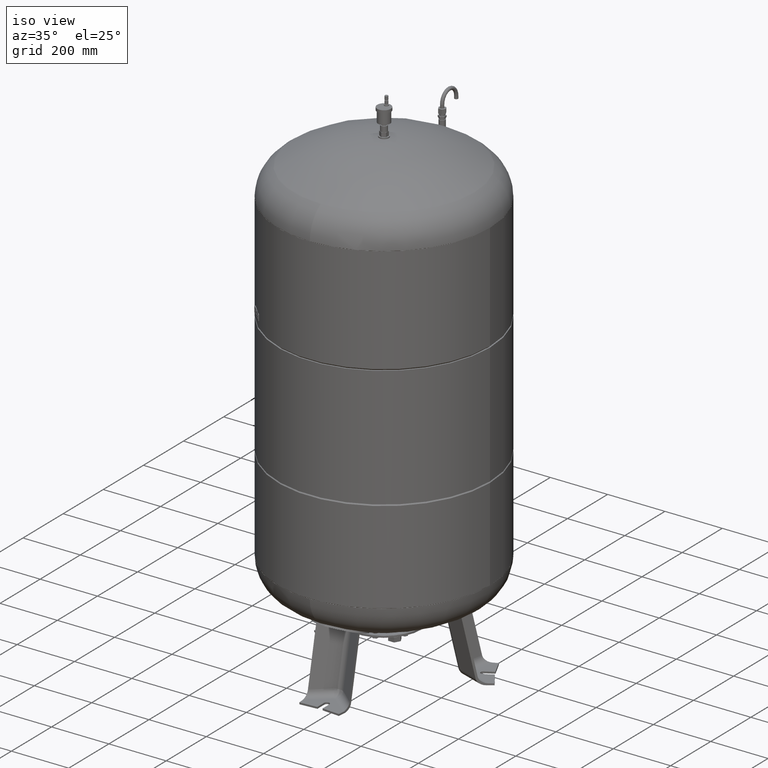
[diagram: clean part render]
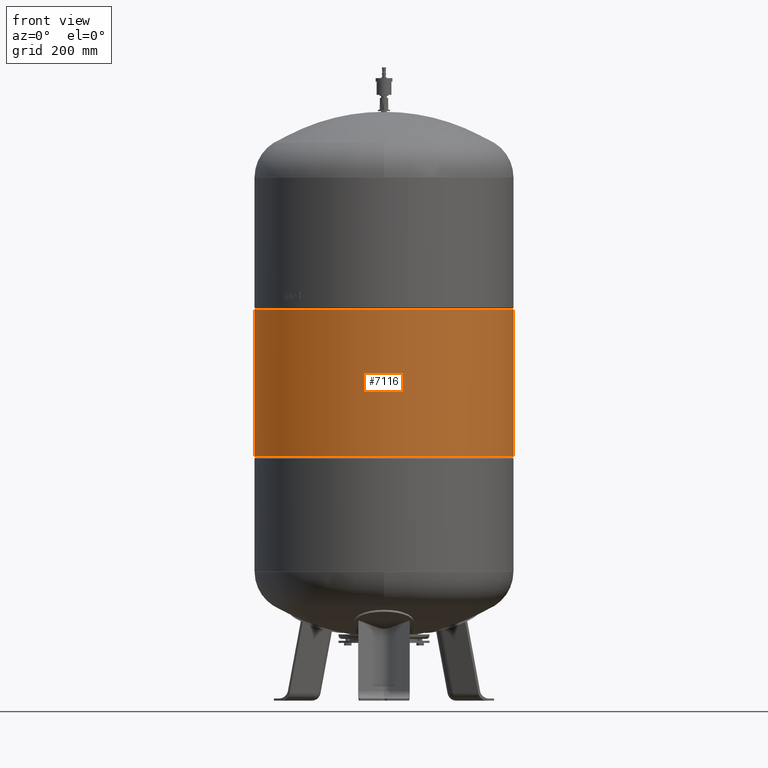
[diagram: tour spotlight — one face highlighted and labeled with its STEP entity id]
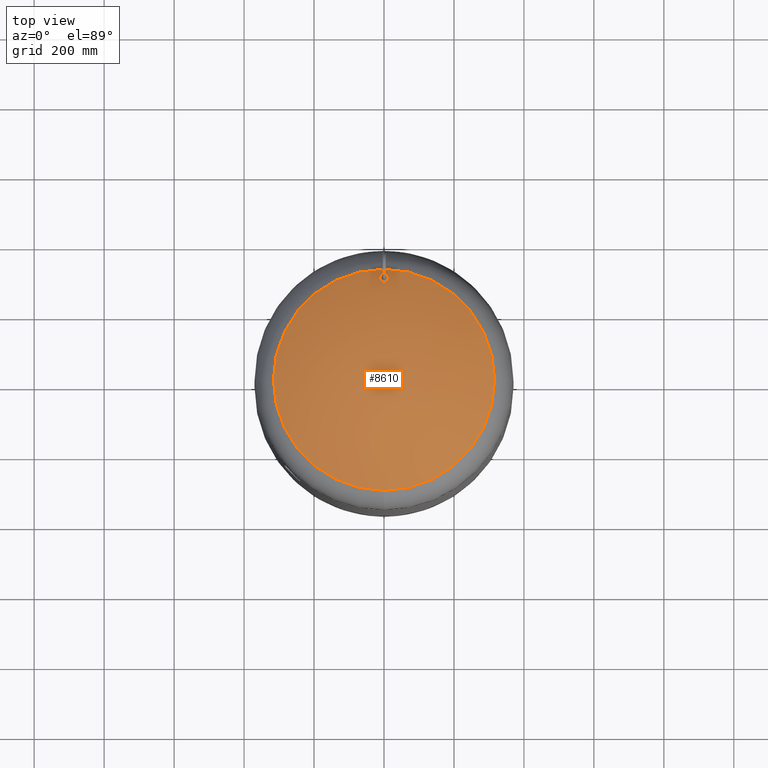
[diagram: tour spotlight — one face highlighted and labeled with its STEP entity id]
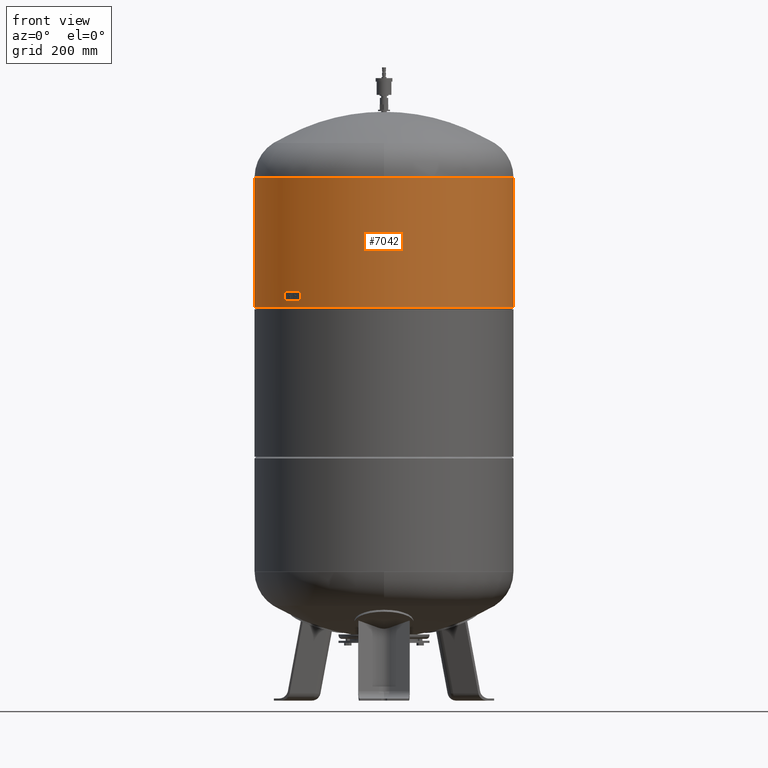
[diagram: tour spotlight — one face highlighted and labeled with its STEP entity id]
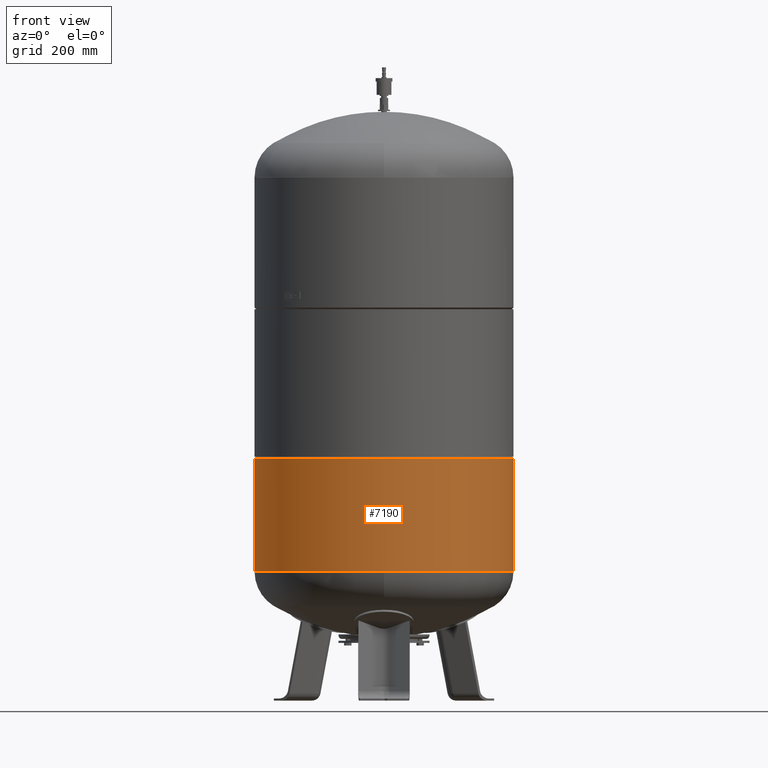
[diagram: tour spotlight — one face highlighted and labeled with its STEP entity id]
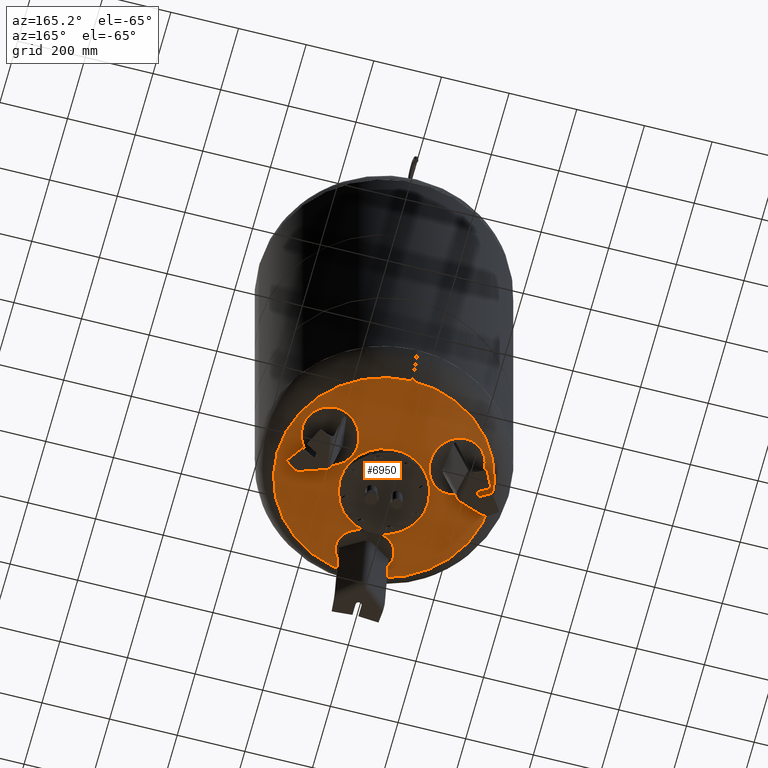
[diagram: tour spotlight — one face highlighted and labeled with its STEP entity id]
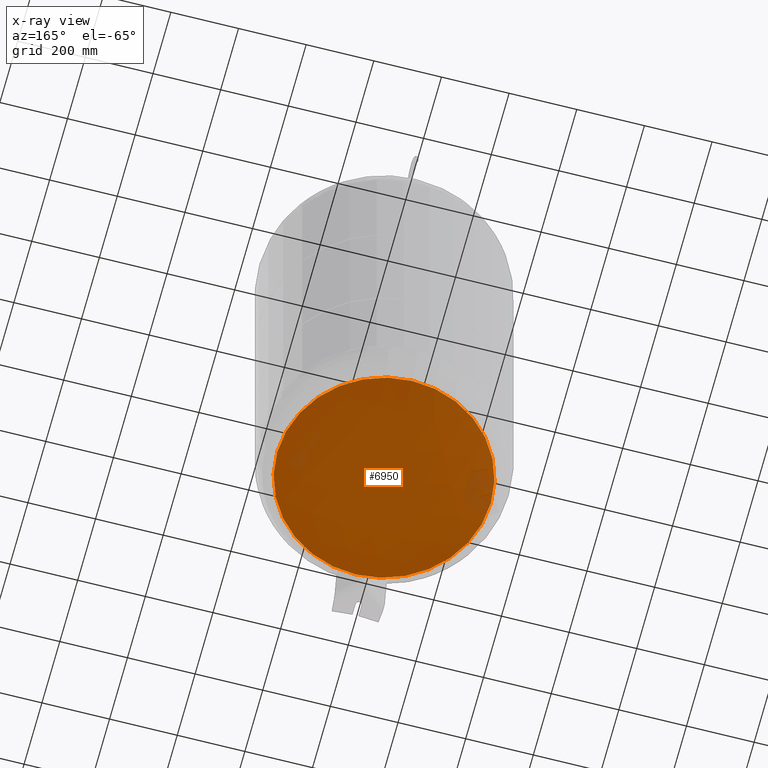
[diagram: x-ray of the same camera — body ghosted, this tour face saturated]
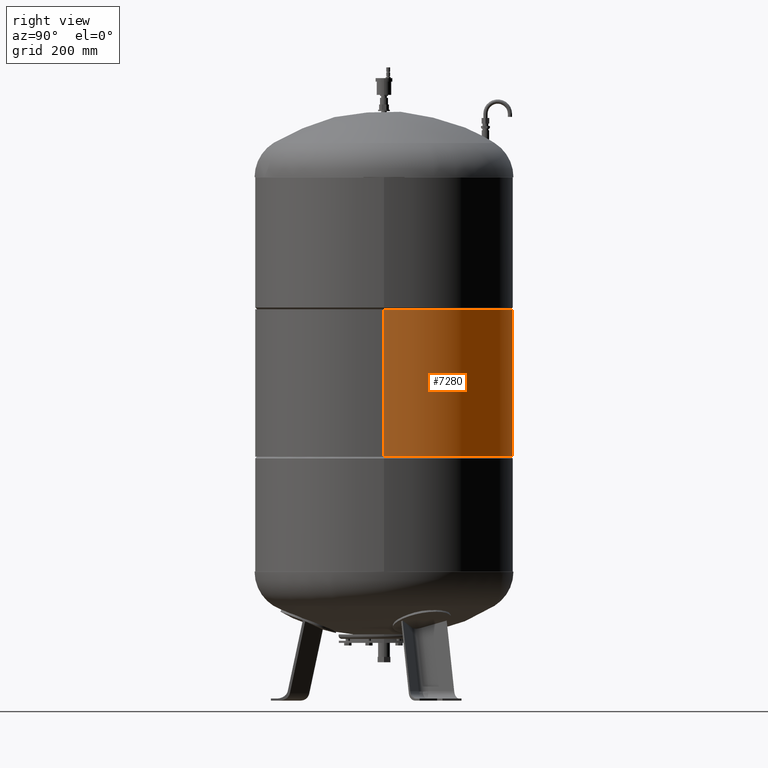
[diagram: tour spotlight — one face highlighted and labeled with its STEP entity id]
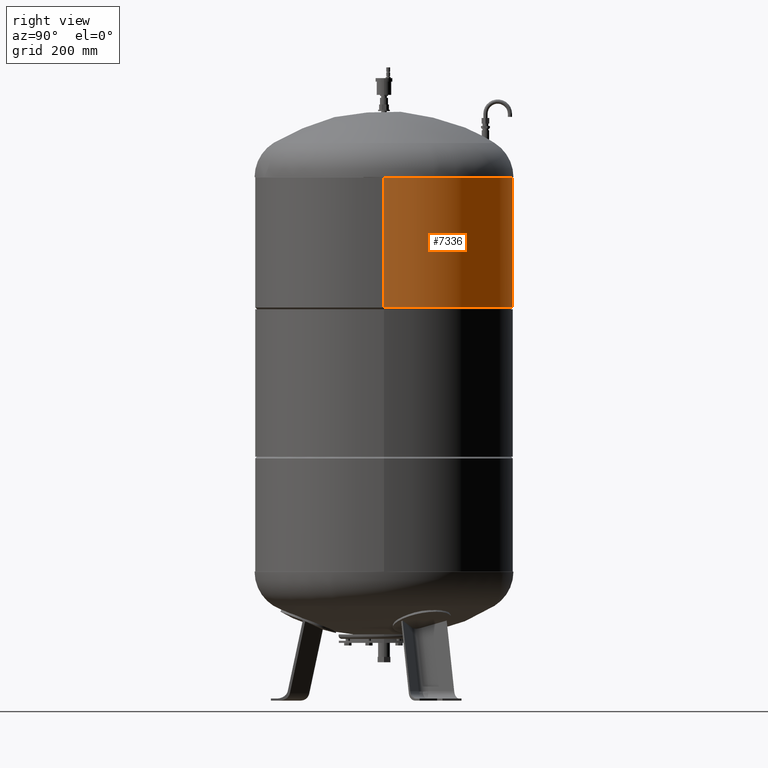
[diagram: tour spotlight — one face highlighted and labeled with its STEP entity id]
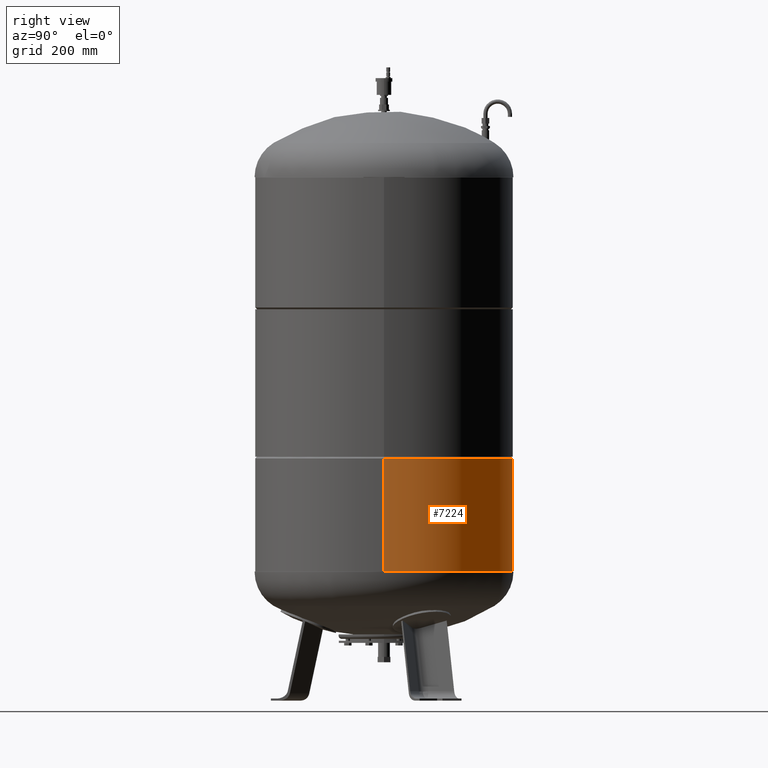
[diagram: tour spotlight — one face highlighted and labeled with its STEP entity id]
A machine part: a face-by-face anatomy tour. The part has 455 B-rep faces; the first image is the clean iso view, then the 8 largest visible faces are spotlighted one at a time (largest first), each with its STEP entity span.

Face 1 — front view, entity #7116. In plain terms, the highlighted cylindrical surface (partial cylindrical patch) has radius 370 mm, axis along (0, 0, 1).
Definition (entity closure, byte-faithful):
#7075=CARTESIAN_POINT('',(-7.289513E-016,0.0,907.885609846773600));
#7076=DIRECTION('',(2.961484E-017,0.0,1.0));
#7077=DIRECTION('',(1.0,0.0,0.0));
#7078=AXIS2_PLACEMENT_3D('',#7075,#7076,#7077);
#7079=CYLINDRICAL_SURFACE('',#7078,370.000000000001140);
#7080=CARTESIAN_POINT('',(369.999999999999720,0.0,1118.666666666666500));
#7081=VERTEX_POINT('',#7080);
#7082=CARTESIAN_POINT('',(370.000000000002610,0.0,697.104553026880580));
#7083=VERTEX_POINT('',#7082);
#7084=CARTESIAN_POINT('',(369.999999999999720,0.0,1118.666666666666500));
#7085=DIRECTION('',(0.0,0.0,-1.0));
#7086=VECTOR('',#7085,421.562113639785930);
#7087=LINE('',#7084,#7086);
#7088=EDGE_CURVE('',#7081,#7083,#7087,.T.);
#7089=ORIENTED_EDGE('',*,*,#7088,.F.);
#7090=CARTESIAN_POINT('',(-370.000000000001140,-4.531044E-014,1118.666666666666500));
#7091=VERTEX_POINT('',#7090);
#7092=CARTESIAN_POINT('',(5.513297E-015,0.0,1118.666666666666500));
#7093=DIRECTION('',(0.0,0.0,1.0));
#7094=DIRECTION('',(1.0,0.0,0.0));
#7095=AXIS2_PLACEMENT_3D('',#7092,#7093,#7094);
#7096=CIRCLE('',#7095,369.999999999999720);
#7097=EDGE_CURVE('',#7091,#7081,#7096,.T.);
#7098=ORIENTED_EDGE('',*,*,#7097,.F.);
#7099=CARTESIAN_POINT('',(-370.000000000001140,-4.531044E-014,697.104553026880470));
#7100=VERTEX_POINT('',#7099);
#7101=CARTESIAN_POINT('',(-370.000000000001140,-4.531044E-014,1118.666666666666500));
#7102=DIRECTION('',(0.0,0.0,-1.0));
#7103=VECTOR('',#7102,421.562113639786050);
#7104=LINE('',#7101,#7103);
#7105=EDGE_CURVE('',#7091,#7100,#7104,.T.);
#7106=ORIENTED_EDGE('',*,*,#7105,.T.);
#7107=CARTESIAN_POINT('',(-6.971199E-015,0.0,697.104553026880470));
#7108=DIRECTION('',(0.0,0.0,1.0));
#7109=DIRECTION('',(1.0,0.0,0.0));
#7110=AXIS2_PLACEMENT_3D('',#7107,#7108,#7109);
#7111=CIRCLE('',#7110,370.000000000002610);
#7112=EDGE_CURVE('',#7100,#7083,#7111,.T.);
#7113=ORIENTED_EDGE('',*,*,#7112,.T.);
#7114=EDGE_LOOP('',(#7089,#7098,#7106,#7113));
#7115=FACE_OUTER_BOUND('',#7114,.T.);
#7116=ADVANCED_FACE('',(#7115),#7079,.T.);

Face 2 — top view, entity #8610. In plain terms, the highlighted spherical surface has radius 594 mm.
Definition (entity closure, byte-faithful):
#8409=CARTESIAN_POINT('',(-1.114251E-014,-315.931034482758610,1594.014494274920500));
#8410=VERTEX_POINT('',#8409);
#8426=CARTESIAN_POINT('',(2.754660E-014,315.931034482758610,1594.014494274920300));
#8427=VERTEX_POINT('',#8426);
#8435=CARTESIAN_POINT('',(315.931034482758610,-1.671377E-014,1594.014494274920500));
#8436=VERTEX_POINT('',#8435);
#8437=CARTESIAN_POINT('',(-1.114251E-014,-1.671377E-014,1594.014494274920500));
#8438=DIRECTION('',(0.0,0.0,-1.0));
#8439=DIRECTION('',(1.0,0.0,0.0));
#8440=AXIS2_PLACEMENT_3D('',#8437,#8438,#8439);
#8441=CIRCLE('',#8440,315.931034482758610);
#8442=EDGE_CURVE('',#8427,#8436,#8441,.T.);
#8444=CARTESIAN_POINT('',(-1.114251E-014,-1.671377E-014,1594.014494274920500));
#8445=DIRECTION('',(0.0,0.0,-1.0));
#8446=DIRECTION('',(1.0,0.0,0.0));
#8447=AXIS2_PLACEMENT_3D('',#8444,#8445,#8446);
#8448=CIRCLE('',#8447,315.931034482758610);
#8449=EDGE_CURVE('',#8436,#8410,#8448,.T.);
#8461=CARTESIAN_POINT('',(-1.426741E-015,300.649999999999980,1603.294424623184800));
#8462=VERTEX_POINT('',#8461);
#8478=CARTESIAN_POINT('',(-1.738477E-015,279.350000000000020,1615.213293898581000));
#8479=VERTEX_POINT('',#8478);
#8486=CARTESIAN_POINT('',(-1.426741E-015,300.649999999999980,1603.294424623184800));
#8487=CARTESIAN_POINT('',(0.664517088266966,300.649999999999980,1603.294424623184800));
#8488=CARTESIAN_POINT('',(1.348109253964791,300.586742816807940,1603.330237396211300));
#8489=CARTESIAN_POINT('',(2.699997526115716,300.325044086684220,1603.478348239149500));
#8490=CARTESIAN_POINT('',(3.368311995923750,300.126673865972800,1603.590604711757800));
#8491=CARTESIAN_POINT('',(4.642225047619459,299.609620017986860,1603.883046385434900));
#8492=CARTESIAN_POINT('',(5.249078569755759,299.290487690306630,1604.063482169014600));
#8493=CARTESIAN_POINT('',(6.365540166833180,298.564221257298130,1604.473827245883500));
#8494=CARTESIAN_POINT('',(6.875165778754454,298.157105848957940,1604.703721915900100));
#8495=CARTESIAN_POINT('',(7.847982860928026,297.235396201609030,1605.223809168565800));
#8496=CARTESIAN_POINT('',(8.329195202777362,296.677378821544890,1605.538447018439900));
#8497=CARTESIAN_POINT('',(9.167633919748026,295.469677227438580,1606.218672395249100));
#8498=CARTESIAN_POINT('',(9.524959682086166,294.820043720028930,1606.584227440323500));
#8499=CARTESIAN_POINT('',(10.094573362227591,293.472357809267690,1607.341702181573100));
#8500=CARTESIAN_POINT('',(10.307217396789019,292.773495712663700,1607.734074588636800));
#8501=CARTESIAN_POINT('',(10.584964209315700,291.374605990228820,1608.518559937688700));
#8502=CARTESIAN_POINT('',(10.650000000000000,290.674568008310080,1608.910678128115700));
#8503=CARTESIAN_POINT('',(10.650000000000000,289.326890933060330,1609.664749724906600));
#8504=CARTESIAN_POINT('',(10.585242166991089,288.627963842796310,1610.055402266440100));
#8505=CARTESIAN_POINT('',(10.308262040270693,287.230601388777020,1610.835532495903000));
#8506=CARTESIAN_POINT('',(10.096100866333323,286.532157118036820,1611.225015928660900));
#8507=CARTESIAN_POINT('',(9.527392653826960,285.184817947542680,1611.975550208299900));
#8508=CARTESIAN_POINT('',(9.170481345050588,284.535105591821660,1612.337058921764500));
#8509=CARTESIAN_POINT('',(8.332742027804864,283.327053926448230,1613.008619632953900));
#8510=CARTESIAN_POINT('',(7.851815066558222,282.768768683924800,1613.318645446750900));
#8511=CARTESIAN_POINT('',(6.878746613494370,281.845830867641440,1613.830806056575300));
#8512=CARTESIAN_POINT('',(6.368501973952601,281.437916940925050,1614.057001015449900));
#8513=CARTESIAN_POINT('',(5.250854218026277,280.710456755459800,1614.460173479165400));
#8514=CARTESIAN_POINT('',(4.643436250791682,280.390929593923540,1614.637144272945100));
#8515=CARTESIAN_POINT('',(3.368640291526728,279.873401441482540,1614.923682600095600));
#8516=CARTESIAN_POINT('',(2.700014877431559,279.674951273003500,1615.033501796580800));
#8517=CARTESIAN_POINT('',(1.347853391049690,279.413215653805140,1615.178326206185800));
#8518=CARTESIAN_POINT('',(0.664299790820504,279.350000000000020,1615.213293898581000));
#8519=CARTESIAN_POINT('',(-1.738477E-015,279.350000000000020,1615.213293898581000));
#8520=B_SPLINE_CURVE_WITH_KNOTS('',3,(#8486,#8487,#8488,#8489,#8490,#8491,#8492,#8493,#8494,#8495,#8496,#8497,#8498,#8499,#8500,#8501,#8502,#8503,#8504,#8505,#8506,#8507,#8508,#8509,#8510,#8511,#8512,#8513,#8514,#8515,#8516,#8517,#8518,#8519),.UNSPECIFIED.,.F.,.U.,(4,2,2,2,2,2,2,2,2,2,2,2,2,2,2,2,4),(0.0,1.993551264800902,3.987102529601803,5.980653794402706,7.974205059203607,10.293160315896881,12.612115572590152,14.931070829283426,17.250026085976700,19.563965955461391,21.877905824946087,24.191845694430782,26.505785563915474,28.498684936376989,30.491584308838508,32.484483681300027,34.477383053761542),.UNSPECIFIED.);
#8521=EDGE_CURVE('',#8462,#8479,#8520,.T.);
#8532=CARTESIAN_POINT('',(-1.738477E-015,279.350000000000020,1615.213293898581000));
#8533=CARTESIAN_POINT('',(-0.664299790820507,279.350000000000020,1615.213293898581000));
#8534=CARTESIAN_POINT('',(-1.347853391049694,279.413215653805140,1615.178326206185800));
#8535=CARTESIAN_POINT('',(-2.700014877431564,279.674951273003500,1615.033501796580800));
#8536=CARTESIAN_POINT('',(-3.368640291526734,279.873401441482540,1614.923682600095600));
#8537=CARTESIAN_POINT('',(-4.643436250791682,280.390929593923540,1614.637144272945100));
#8538=CARTESIAN_POINT('',(-5.250854218026280,280.710456755459800,1614.460173479165400));
#8539=CARTESIAN_POINT('',(-6.368501973952598,281.437916940925050,1614.057001015449900));
#8540=CARTESIAN_POINT('',(-6.878746613494377,281.845830867641440,1613.830806056575300));
#8541=CARTESIAN_POINT('',(-7.851815066558236,282.768768683924800,1613.318645446750900));
#8542=CARTESIAN_POINT('',(-8.332742027804892,283.327053926448290,1613.008619632954200));
#8543=CARTESIAN_POINT('',(-9.170481345050627,284.535105591821720,1612.337058921764800));
#8544=CARTESIAN_POINT('',(-9.527392653826961,285.184817947542680,1611.975550208299900));
#8545=CARTESIAN_POINT('',(-10.096100866333327,286.532157118036820,1611.225015928660900));
#8546=CARTESIAN_POINT('',(-10.308262040270678,287.230601388776850,1610.835532495903000));
#8547=CARTESIAN_POINT('',(-10.585242166991081,288.627963842796130,1610.055402266440100));
#8548=CARTESIAN_POINT('',(-10.650000000000004,289.326890933060330,1609.664749724906600));
#8549=CARTESIAN_POINT('',(-10.650000000000004,290.674568008310080,1608.910678128115700));
#8550=CARTESIAN_POINT('',(-10.584964209315713,291.374605990228760,1608.518559937688700));
#8551=CARTESIAN_POINT('',(-10.307217396789024,292.773495712663700,1607.734074588636800));
#8552=CARTESIAN_POINT('',(-10.094573362227585,293.472357809267750,1607.341702181573100));
#8553=CARTESIAN_POINT('',(-9.524959682086173,294.820043720028880,1606.584227440323700));
#8554=CARTESIAN_POINT('',(-9.167633919748015,295.469677227438640,1606.218672395249300));
#8555=CARTESIAN_POINT('',(-8.329195202777386,296.677378821544830,1605.538447018439900));
#8556=CARTESIAN_POINT('',(-7.847982860928025,297.235396201608980,1605.223809168565800));
#8557=CARTESIAN_POINT('',(-6.875165778754459,298.157105848957830,1604.703721915900100));
#8558=CARTESIAN_POINT('',(-6.365540166833259,298.564221257298070,1604.473827245883500));
#8559=CARTESIAN_POINT('',(-5.249078569755819,299.290487690306580,1604.063482169014600));
#8560=CARTESIAN_POINT('',(-4.642225047619510,299.609620017986860,1603.883046385434900));
#8561=CARTESIAN_POINT('',(-3.368311995923790,300.126673865972860,1603.590604711757600));
#8562=CARTESIAN_POINT('',(-2.699997526115732,300.325044086684220,1603.478348239149500));
#8563=CARTESIAN_POINT('',(-1.348109253964804,300.586742816807940,1603.330237396211300));
#8564=CARTESIAN_POINT('',(-0.664517088266972,300.649999999999980,1603.294424623184800));
#8565=CARTESIAN_POINT('',(-1.426741E-015,300.649999999999980,1603.294424623184800));
#8566=B_SPLINE_CURVE_WITH_KNOTS('',3,(#8532,#8533,#8534,#8535,#8536,#8537,#8538,#8539,#8540,#8541,#8542,#8543,#8544,#8545,#8546,#8547,#8548,#8549,#8550,#8551,#8552,#8553,#8554,#8555,#8556,#8557,#8558,#8559,#8560,#8561,#8562,#8563,#8564,#8565),.UNSPECIFIED.,.F.,.U.,(4,2,2,2,2,2,2,2,2,2,2,2,2,2,2,2,4),(34.477383053761542,36.470282426223058,38.463181798684573,40.456081171146081,42.448980543607597,44.762920413092303,47.076860282577016,49.390800152061722,51.704740021546428,54.023695278239678,56.342650534932929,58.661605791626172,60.980561048319423,62.974112313120344,64.967663577921257,66.961214842722171,68.954766107523085),.UNSPECIFIED.);
#8567=EDGE_CURVE('',#8479,#8462,#8566,.T.);
#8590=CARTESIAN_POINT('',(-7.274402E-014,-1.091160E-013,1091.0));
#8591=DIRECTION('',(0.0,-1.0,0.0));
#8592=DIRECTION('',(-1.0,0.0,0.0));
#8593=AXIS2_PLACEMENT_3D('',#8590,#8591,#8592);
#8594=SPHERICAL_SURFACE('',#8593,594.0);
#8595=ORIENTED_EDGE('',*,*,#8521,.T.);
#8596=ORIENTED_EDGE('',*,*,#8567,.T.);
#8597=EDGE_LOOP('',(#8595,#8596));
#8598=FACE_OUTER_BOUND('',#8597,.T.);
#8599=ORIENTED_EDGE('',*,*,#8449,.F.);
#8600=ORIENTED_EDGE('',*,*,#8442,.F.);
#8601=CARTESIAN_POINT('',(-1.114251E-014,-1.671377E-014,1594.014494274920500));
#8602=DIRECTION('',(0.0,0.0,-1.0));
#8603=DIRECTION('',(1.0,0.0,0.0));
#8604=AXIS2_PLACEMENT_3D('',#8601,#8602,#8603);
#8605=CIRCLE('',#8604,315.931034482758610);
#8606=EDGE_CURVE('',#8410,#8427,#8605,.T.);
#8607=ORIENTED_EDGE('',*,*,#8606,.F.);
#8608=EDGE_LOOP('',(#8599,#8600,#8607));
#8609=FACE_BOUND('',#8608,.T.);
#8610=ADVANCED_FACE('',(#8598,#8609),#8594,.T.);

Face 3 — front view, entity #7042. In plain terms, the highlighted cylindrical surface (partial cylindrical patch) has radius 370 mm, axis along (0, 0, 1).
Definition (entity closure, byte-faithful):
#7001=CARTESIAN_POINT('',(1.117467E-014,0.0,1309.833333333333500));
#7002=DIRECTION('',(2.961484E-017,0.0,1.0));
#7003=DIRECTION('',(1.0,0.0,0.0));
#7004=AXIS2_PLACEMENT_3D('',#7001,#7002,#7003);
#7005=CYLINDRICAL_SURFACE('',#7004,369.999999999999890);
#7006=CARTESIAN_POINT('',(370.0,0.0,1496.0));
#7007=VERTEX_POINT('',#7006);
#7008=CARTESIAN_POINT('',(369.999999999999720,0.0,1123.666666666666500));
#7009=VERTEX_POINT('',#7008);
#7010=CARTESIAN_POINT('',(370.0,0.0,1496.0));
#7011=DIRECTION('',(0.0,0.0,-1.0));
#7012=VECTOR('',#7011,372.333333333333480);
#7013=LINE('',#7010,#7012);
#7014=EDGE_CURVE('',#7007,#7009,#7013,.T.);
#7015=ORIENTED_EDGE('',*,*,#7014,.F.);
#7016=CARTESIAN_POINT('',(-369.999999999999890,-4.531044E-014,1496.0));
#7017=VERTEX_POINT('',#7016);
#7018=CARTESIAN_POINT('',(1.668796E-014,0.0,1496.0));
#7019=DIRECTION('',(0.0,0.0,1.0));
#7020=DIRECTION('',(1.0,0.0,0.0));
#7021=AXIS2_PLACEMENT_3D('',#7018,#7019,#7020);
#7022=CIRCLE('',#7021,370.0);
#7023=EDGE_CURVE('',#7017,#7007,#7022,.T.);
#7024=ORIENTED_EDGE('',*,*,#7023,.F.);
#7025=CARTESIAN_POINT('',(-369.999999999999720,-4.531044E-014,1123.666666666666500));
#7026=VERTEX_POINT('',#7025);
#7027=CARTESIAN_POINT('',(-369.999999999999890,-4.531044E-014,1496.0));
#7028=DIRECTION('',(0.0,0.0,-1.0));
#7029=VECTOR('',#7028,372.333333333333480);
#7030=LINE('',#7027,#7029);
#7031=EDGE_CURVE('',#7017,#7026,#7030,.T.);
#7032=ORIENTED_EDGE('',*,*,#7031,.T.);
#7033=CARTESIAN_POINT('',(5.661371E-015,0.0,1123.666666666666500));
#7034=DIRECTION('',(0.0,0.0,1.0));
#7035=DIRECTION('',(1.0,0.0,0.0));
#7036=AXIS2_PLACEMENT_3D('',#7033,#7034,#7035);
#7037=CIRCLE('',#7036,369.999999999999720);
#7038=EDGE_CURVE('',#7026,#7009,#7037,.T.);
#7039=ORIENTED_EDGE('',*,*,#7038,.T.);
#7040=EDGE_LOOP('',(#7015,#7024,#7032,#7039));
#7041=FACE_OUTER_BOUND('',#7040,.T.);
#7042=ADVANCED_FACE('',(#7041),#7005,.T.);

Face 4 — front view, entity #7190. In plain terms, the highlighted cylindrical surface (partial cylindrical patch) has radius 370 mm, axis along (0, 0, 1).
Definition (entity closure, byte-faithful):
#7124=CARTESIAN_POINT('',(369.999999999997730,0.0,692.104553026880470));
#7125=VERTEX_POINT('',#7124);
#7141=CARTESIAN_POINT('',(-369.999999999998860,-4.531044E-014,692.104553026880470));
#7142=VERTEX_POINT('',#7141);
#7149=CARTESIAN_POINT('',(-7.119274E-015,0.0,692.104553026880470));
#7150=DIRECTION('',(0.0,0.0,1.0));
#7151=DIRECTION('',(1.0,0.0,0.0));
#7152=AXIS2_PLACEMENT_3D('',#7149,#7150,#7151);
#7153=CIRCLE('',#7152,369.999999999997730);
#7154=EDGE_CURVE('',#7142,#7125,#7153,.T.);
#7159=CARTESIAN_POINT('',(-1.190362E-014,0.0,530.552276513440120));
#7160=DIRECTION('',(2.961484E-017,0.0,1.0));
#7161=DIRECTION('',(1.0,0.0,0.0));
#7162=AXIS2_PLACEMENT_3D('',#7159,#7160,#7161);
#7163=CYLINDRICAL_SURFACE('',#7162,369.999999999998860);
#7164=CARTESIAN_POINT('',(369.999999999999940,0.0,369.0));
#7165=VERTEX_POINT('',#7164);
#7166=CARTESIAN_POINT('',(369.999999999997730,0.0,692.104553026880470));
#7167=DIRECTION('',(0.0,0.0,-1.0));
#7168=VECTOR('',#7167,323.104553026880470);
#7169=LINE('',#7166,#7168);
#7170=EDGE_CURVE('',#7125,#7165,#7169,.T.);
#7171=ORIENTED_EDGE('',*,*,#7170,.F.);
#7172=ORIENTED_EDGE('',*,*,#7154,.F.);
#7173=CARTESIAN_POINT('',(-369.999999999998860,-4.531044E-014,369.0));
#7174=VERTEX_POINT('',#7173);
#7175=CARTESIAN_POINT('',(-369.999999999998860,-4.531044E-014,692.104553026880470));
#7176=DIRECTION('',(0.0,0.0,-1.0));
#7177=VECTOR('',#7176,323.104553026880470);
#7178=LINE('',#7175,#7177);
#7179=EDGE_CURVE('',#7142,#7174,#7178,.T.);
#7180=ORIENTED_EDGE('',*,*,#7179,.T.);
#7181=CARTESIAN_POINT('',(-1.668796E-014,0.0,369.0));
#7182=DIRECTION('',(0.0,0.0,1.0));
#7183=DIRECTION('',(1.0,0.0,0.0));
#7184=AXIS2_PLACEMENT_3D('',#7181,#7182,#7183);
#7185=CIRCLE('',#7184,369.999999999999940);
#7186=EDGE_CURVE('',#7174,#7165,#7185,.T.);
#7187=ORIENTED_EDGE('',*,*,#7186,.T.);
#7188=EDGE_LOOP('',(#7171,#7172,#7180,#7187));
#7189=FACE_OUTER_BOUND('',#7188,.T.);
#7190=ADVANCED_FACE('',(#7189),#7163,.T.);

Face 5 — auxiliary view, entity #6950. An x-ray twin of the same camera follows (body ghosted, this face saturated) — the face is partly hidden behind the body. In plain terms, the highlighted spherical surface has radius 594 mm.
Definition (entity closure, byte-faithful):
#6889=CARTESIAN_POINT('',(0.0,-315.931034482758610,270.985505725079410));
#6890=VERTEX_POINT('',#6889);
#6906=CARTESIAN_POINT('',(-3.868912E-014,315.931034482758610,270.985505725079630));
#6907=VERTEX_POINT('',#6906);
#6915=CARTESIAN_POINT('',(-315.931034482758610,-1.671377E-014,270.985505725079520));
#6916=VERTEX_POINT('',#6915);
#6917=CARTESIAN_POINT('',(0.0,-1.671377E-014,270.985505725079520));
#6918=DIRECTION('',(0.0,0.0,1.0));
#6919=DIRECTION('',(-1.0,0.0,0.0));
#6920=AXIS2_PLACEMENT_3D('',#6917,#6918,#6919);
#6921=CIRCLE('',#6920,315.931034482758610);
#6922=EDGE_CURVE('',#6907,#6916,#6921,.T.);
#6924=CARTESIAN_POINT('',(0.0,-1.671377E-014,270.985505725079520));
#6925=DIRECTION('',(0.0,0.0,1.0));
#6926=DIRECTION('',(-1.0,0.0,0.0));
#6927=AXIS2_PLACEMENT_3D('',#6924,#6925,#6926);
#6928=CIRCLE('',#6927,315.931034482758610);
#6929=EDGE_CURVE('',#6916,#6890,#6928,.T.);
#6934=CARTESIAN_POINT('',(0.0,-1.091160E-013,774.0));
#6935=DIRECTION('',(0.0,-1.0,0.0));
#6936=DIRECTION('',(1.0,0.0,0.0));
#6937=AXIS2_PLACEMENT_3D('',#6934,#6935,#6936);
#6938=SPHERICAL_SURFACE('',#6937,594.0);
#6939=ORIENTED_EDGE('',*,*,#6929,.F.);
#6940=ORIENTED_EDGE('',*,*,#6922,.F.);
#6941=CARTESIAN_POINT('',(0.0,-1.671377E-014,270.985505725079520));
#6942=DIRECTION('',(0.0,0.0,1.0));
#6943=DIRECTION('',(-1.0,0.0,0.0));
#6944=AXIS2_PLACEMENT_3D('',#6941,#6942,#6943);
#6945=CIRCLE('',#6944,315.931034482758610);
#6946=EDGE_CURVE('',#6890,#6907,#6945,.T.);
#6947=ORIENTED_EDGE('',*,*,#6946,.F.);
#6948=EDGE_LOOP('',(#6939,#6940,#6947));
#6949=FACE_OUTER_BOUND('',#6948,.T.);
#6950=ADVANCED_FACE('',(#6949),#6938,.T.);

Face 6 — right view, entity #7280. In plain terms, the highlighted cylindrical surface (partial cylindrical patch) has radius 370 mm, axis along (0, 0, 1).
Definition (entity closure, byte-faithful):
#7080=CARTESIAN_POINT('',(369.999999999999720,0.0,1118.666666666666500));
#7081=VERTEX_POINT('',#7080);
#7082=CARTESIAN_POINT('',(370.000000000002610,0.0,697.104553026880580));
#7083=VERTEX_POINT('',#7082);
#7084=CARTESIAN_POINT('',(369.999999999999720,0.0,1118.666666666666500));
#7085=DIRECTION('',(0.0,0.0,-1.0));
#7086=VECTOR('',#7085,421.562113639785930);
#7087=LINE('',#7084,#7086);
#7088=EDGE_CURVE('',#7081,#7083,#7087,.T.);
#7090=CARTESIAN_POINT('',(-370.000000000001140,-4.531044E-014,1118.666666666666500));
#7091=VERTEX_POINT('',#7090);
#7099=CARTESIAN_POINT('',(-370.000000000001140,-4.531044E-014,697.104553026880470));
#7100=VERTEX_POINT('',#7099);
#7101=CARTESIAN_POINT('',(-370.000000000001140,-4.531044E-014,1118.666666666666500));
#7102=DIRECTION('',(0.0,0.0,-1.0));
#7103=VECTOR('',#7102,421.562113639786050);
#7104=LINE('',#7101,#7103);
#7105=EDGE_CURVE('',#7091,#7100,#7104,.T.);
#7248=CARTESIAN_POINT('',(-6.971199E-015,0.0,697.104553026880470));
#7249=DIRECTION('',(0.0,0.0,1.0));
#7250=DIRECTION('',(1.0,0.0,0.0));
#7251=AXIS2_PLACEMENT_3D('',#7248,#7249,#7250);
#7252=CIRCLE('',#7251,370.000000000002610);
#7253=EDGE_CURVE('',#7083,#7100,#7252,.T.);
#7263=CARTESIAN_POINT('',(-7.289513E-016,0.0,907.885609846773600));
#7264=DIRECTION('',(2.961484E-017,0.0,1.0));
#7265=DIRECTION('',(1.0,0.0,0.0));
#7266=AXIS2_PLACEMENT_3D('',#7263,#7264,#7265);
#7267=CYLINDRICAL_SURFACE('',#7266,370.000000000001140);
#7268=ORIENTED_EDGE('',*,*,#7088,.T.);
#7269=ORIENTED_EDGE('',*,*,#7253,.T.);
#7270=ORIENTED_EDGE('',*,*,#7105,.F.);
#7271=CARTESIAN_POINT('',(5.513297E-015,0.0,1118.666666666666500));
#7272=DIRECTION('',(0.0,0.0,1.0));
#7273=DIRECTION('',(1.0,0.0,0.0));
#7274=AXIS2_PLACEMENT_3D('',#7271,#7272,#7273);
#7275=CIRCLE('',#7274,369.999999999999720);
#7276=EDGE_CURVE('',#7081,#7091,#7275,.T.);
#7277=ORIENTED_EDGE('',*,*,#7276,.F.);
#7278=EDGE_LOOP('',(#7268,#7269,#7270,#7277));
#7279=FACE_OUTER_BOUND('',#7278,.T.);
#7280=ADVANCED_FACE('',(#7279),#7267,.T.);

Face 7 — right view, entity #7336. In plain terms, the highlighted cylindrical surface (partial cylindrical patch) has radius 370 mm, axis along (0, 0, 1).
Definition (entity closure, byte-faithful):
#7006=CARTESIAN_POINT('',(370.0,0.0,1496.0));
#7007=VERTEX_POINT('',#7006);
#7008=CARTESIAN_POINT('',(369.999999999999720,0.0,1123.666666666666500));
#7009=VERTEX_POINT('',#7008);
#7010=CARTESIAN_POINT('',(370.0,0.0,1496.0));
#7011=DIRECTION('',(0.0,0.0,-1.0));
#7012=VECTOR('',#7011,372.333333333333480);
#7013=LINE('',#7010,#7012);
#7014=EDGE_CURVE('',#7007,#7009,#7013,.T.);
#7016=CARTESIAN_POINT('',(-369.999999999999890,-4.531044E-014,1496.0));
#7017=VERTEX_POINT('',#7016);
#7025=CARTESIAN_POINT('',(-369.999999999999720,-4.531044E-014,1123.666666666666500));
#7026=VERTEX_POINT('',#7025);
#7027=CARTESIAN_POINT('',(-369.999999999999890,-4.531044E-014,1496.0));
#7028=DIRECTION('',(0.0,0.0,-1.0));
#7029=VECTOR('',#7028,372.333333333333480);
#7030=LINE('',#7027,#7029);
#7031=EDGE_CURVE('',#7017,#7026,#7030,.T.);
#7309=CARTESIAN_POINT('',(5.661371E-015,0.0,1123.666666666666500));
#7310=DIRECTION('',(0.0,0.0,1.0));
#7311=DIRECTION('',(1.0,0.0,0.0));
#7312=AXIS2_PLACEMENT_3D('',#7309,#7310,#7311);
#7313=CIRCLE('',#7312,369.999999999999720);
#7314=EDGE_CURVE('',#7009,#7026,#7313,.T.);
#7319=CARTESIAN_POINT('',(1.117467E-014,0.0,1309.833333333333500));
#7320=DIRECTION('',(2.961484E-017,0.0,1.0));
#7321=DIRECTION('',(1.0,0.0,0.0));
#7322=AXIS2_PLACEMENT_3D('',#7319,#7320,#7321);
#7323=CYLINDRICAL_SURFACE('',#7322,369.999999999999890);
#7324=ORIENTED_EDGE('',*,*,#7014,.T.);
#7325=ORIENTED_EDGE('',*,*,#7314,.T.);
#7326=ORIENTED_EDGE('',*,*,#7031,.F.);
#7327=CARTESIAN_POINT('',(1.668796E-014,0.0,1496.0));
#7328=DIRECTION('',(0.0,0.0,1.0));
#7329=DIRECTION('',(1.0,0.0,0.0));
#7330=AXIS2_PLACEMENT_3D('',#7327,#7328,#7329);
#7331=CIRCLE('',#7330,370.0);
#7332=EDGE_CURVE('',#7007,#7017,#7331,.T.);
#7333=ORIENTED_EDGE('',*,*,#7332,.F.);
#7334=EDGE_LOOP('',(#7324,#7325,#7326,#7333));
#7335=FACE_OUTER_BOUND('',#7334,.T.);
#7336=ADVANCED_FACE('',(#7335),#7323,.T.);

Face 8 — right view, entity #7224. In plain terms, the highlighted cylindrical surface (partial cylindrical patch) has radius 370 mm, axis along (0, 0, 1).
Definition (entity closure, byte-faithful):
#7124=CARTESIAN_POINT('',(369.999999999997730,0.0,692.104553026880470));
#7125=VERTEX_POINT('',#7124);
#7141=CARTESIAN_POINT('',(-369.999999999998860,-4.531044E-014,692.104553026880470));
#7142=VERTEX_POINT('',#7141);
#7164=CARTESIAN_POINT('',(369.999999999999940,0.0,369.0));
#7165=VERTEX_POINT('',#7164);
#7166=CARTESIAN_POINT('',(369.999999999997730,0.0,692.104553026880470));
#7167=DIRECTION('',(0.0,0.0,-1.0));
#7168=VECTOR('',#7167,323.104553026880470);
#7169=LINE('',#7166,#7168);
#7170=EDGE_CURVE('',#7125,#7165,#7169,.T.);
#7173=CARTESIAN_POINT('',(-369.999999999998860,-4.531044E-014,369.0));
#7174=VERTEX_POINT('',#7173);
#7175=CARTESIAN_POINT('',(-369.999999999998860,-4.531044E-014,692.104553026880470));
#7176=DIRECTION('',(0.0,0.0,-1.0));
#7177=VECTOR('',#7176,323.104553026880470);
#7178=LINE('',#7175,#7177);
#7179=EDGE_CURVE('',#7142,#7174,#7178,.T.);
#7196=CARTESIAN_POINT('',(-1.668796E-014,0.0,369.0));
#7197=DIRECTION('',(0.0,0.0,1.0));
#7198=DIRECTION('',(1.0,0.0,0.0));
#7199=AXIS2_PLACEMENT_3D('',#7196,#7197,#7198);
#7200=CIRCLE('',#7199,369.999999999999940);
#7201=EDGE_CURVE('',#7165,#7174,#7200,.T.);
#7207=CARTESIAN_POINT('',(-1.190362E-014,0.0,530.552276513440120));
#7208=DIRECTION('',(2.961484E-017,0.0,1.0));
#7209=DIRECTION('',(1.0,0.0,0.0));
#7210=AXIS2_PLACEMENT_3D('',#7207,#7208,#7209);
#7211=CYLINDRICAL_SURFACE('',#7210,369.999999999998860);
#7212=ORIENTED_EDGE('',*,*,#7170,.T.);
#7213=ORIENTED_EDGE('',*,*,#7201,.T.);
#7214=ORIENTED_EDGE('',*,*,#7179,.F.);
#7215=CARTESIAN_POINT('',(-7.119274E-015,0.0,692.104553026880470));
#7216=DIRECTION('',(0.0,0.0,1.0));
#7217=DIRECTION('',(1.0,0.0,0.0));
#7218=AXIS2_PLACEMENT_3D('',#7215,#7216,#7217);
#7219=CIRCLE('',#7218,369.999999999997730);
#7220=EDGE_CURVE('',#7125,#7142,#7219,.T.);
#7221=ORIENTED_EDGE('',*,*,#7220,.F.);
#7222=EDGE_LOOP('',(#7212,#7213,#7214,#7221));
#7223=FACE_OUTER_BOUND('',#7222,.T.);
#7224=ADVANCED_FACE('',(#7223),#7211,.T.);